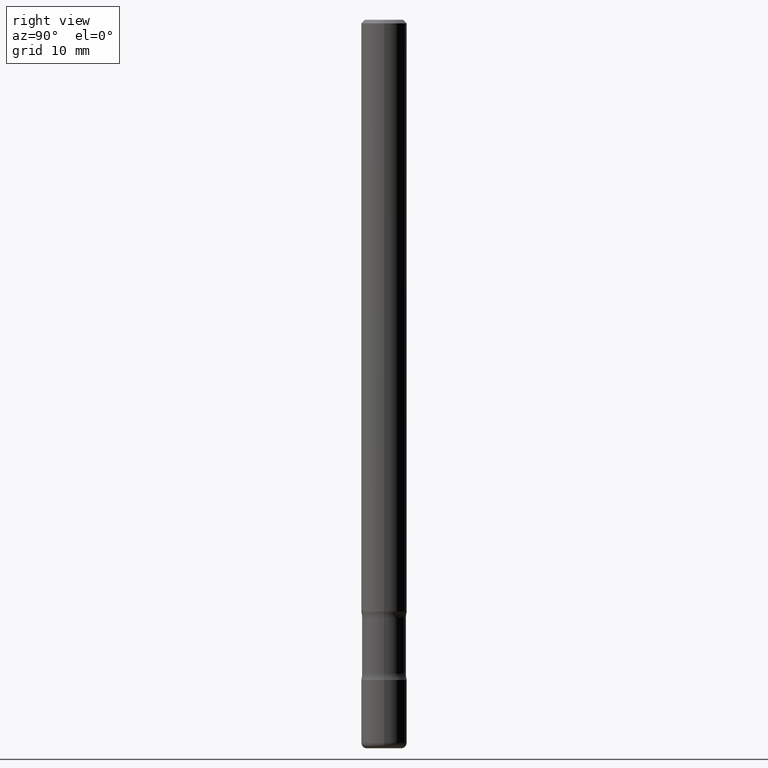
[diagram: clean part render]
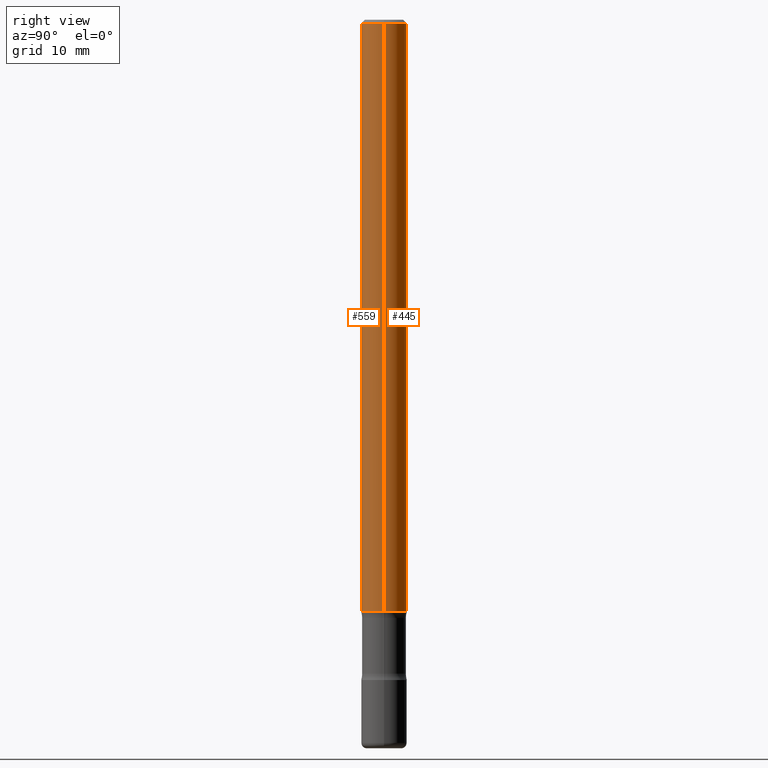
[diagram: same view with one multi-face feature highlighted, each face labeled with its STEP entity id]
A machine part, right view. The highlighted faces form ONE feature: a constant-radius fillet chain: 2 tangent blend faces with common blend radius 3.175 mm. The faces share edges in the B-rep.
Their STEP definitions:
[1] entity #559 (Cylinder):
#35 = ORIENTED_EDGE ( 'NONE', *, *, #324, .F. ) ;
#38 = DIRECTION ( 'NONE',  ( -2.445468806185136877E-29, 3.491481338843145188E-15, 1.000000000000000000 ) ) ;
#48 = CARTESIAN_POINT ( 'NONE',  ( -0.1249999999999998335, 8.881784197001240490E-16, -6.148668862818623819E-30 ) ) ;
#90 = EDGE_CURVE ( 'NONE', #190, #730, #798, .T. ) ;
#107 = DIRECTION ( 'NONE',  ( -2.445468806185136597E-29, 3.491481338843145583E-15, 1.000000000000000000 ) ) ;
#126 = DIRECTION ( 'NONE',  ( -2.445468806185136877E-29, 3.491481338843145188E-15, 1.000000000000000000 ) ) ;
#180 = EDGE_LOOP ( 'NONE', ( #35, #507, #383, #611 ) ) ;
#190 = VERTEX_POINT ( 'NONE', #298 ) ;
#213 = EDGE_CURVE ( 'NONE', #724, #730, #560, .T. ) ;
#216 = AXIS2_PLACEMENT_3D ( 'NONE', #420, #802, #488 ) ;
#235 = LINE ( 'NONE', #48, #570 ) ;
#236 = CYLINDRICAL_SURFACE ( 'NONE', #216, 0.1249999999999998335 ) ;
#247 = AXIS2_PLACEMENT_3D ( 'NONE', #740, #107, #296 ) ;
#290 = FACE_OUTER_BOUND ( 'NONE', #180, .T. ) ;
#296 = DIRECTION ( 'NONE',  ( 1.000000000000000000, -6.982962677686262766E-15, 0.000000000000000000 ) ) ;
#298 = CARTESIAN_POINT ( 'NONE',  ( -0.1249999999999996808, 8.030407079339180685E-16, -0.02000000000000002470 ) ) ;
#314 = CARTESIAN_POINT ( 'NONE',  ( 4.890937612370279289E-31, -6.982962677686299005E-17, -0.02000000000000002470 ) ) ;
#316 = EDGE_CURVE ( 'NONE', #649, #724, #708, .T. ) ;
#324 = EDGE_CURVE ( 'NONE', #649, #190, #235, .T. ) ;
#383 = ORIENTED_EDGE ( 'NONE', *, *, #213, .T. ) ;
#420 = CARTESIAN_POINT ( 'NONE',  ( 0.000000000000000000, 0.000000000000000000, 0.000000000000000000 ) ) ;
#460 = CARTESIAN_POINT ( 'NONE',  ( 0.1249999999999996808, -9.273918764983021797E-16, -0.02000000000000002470 ) ) ;
#488 = DIRECTION ( 'NONE',  ( 1.000000000000000000, -6.982962677686266711E-15, 4.876176775795935793E-29 ) ) ;
#507 = ORIENTED_EDGE ( 'NONE', *, *, #316, .T. ) ;
#529 = AXIS2_PLACEMENT_3D ( 'NONE', #314, #565, #685 ) ;
#559 = ADVANCED_FACE ( 'NONE', ( #290 ), #236, .T. ) ;
#560 = LINE ( 'NONE', #681, #582 ) ;
#565 = DIRECTION ( 'NONE',  ( -2.445468806185136597E-29, 3.491481338843145583E-15, 1.000000000000000000 ) ) ;
#570 = VECTOR ( 'NONE', #38, 39.37007874015748143 ) ;
#582 = VECTOR ( 'NONE', #126, 39.37007874015748143 ) ;
#611 = ORIENTED_EDGE ( 'NONE', *, *, #90, .F. ) ;
#649 = VERTEX_POINT ( 'NONE', #744 ) ;
#681 = CARTESIAN_POINT ( 'NONE',  ( 0.1249999999999998335, -8.728703347107821555E-16, 6.095220969744911333E-30 ) ) ;
#685 = DIRECTION ( 'NONE',  ( 1.000000000000000000, -6.982962677686266711E-15, 0.000000000000000000 ) ) ;
#702 = CARTESIAN_POINT ( 'NONE',  ( 0.1250000000000000000, -1.222018468595100619E-14, -3.250000000000000000 ) ) ;
#708 = CIRCLE ( 'NONE', #247, 0.1250000000000000000 ) ;
#724 = VERTEX_POINT ( 'NONE', #702 ) ;
#730 = VERTEX_POINT ( 'NONE', #460 ) ;
#740 = CARTESIAN_POINT ( 'NONE',  ( 7.947773620101693940E-29, -1.134731435124022443E-14, -3.250000000000000000 ) ) ;
#744 = CARTESIAN_POINT ( 'NONE',  ( -0.1250000000000000000, -4.820393569308410741E-15, -3.250000000000000000 ) ) ;
#798 = CIRCLE ( 'NONE', #529, 0.1249999999999996808 ) ;
#802 = DIRECTION ( 'NONE',  ( -2.445468806185136597E-29, 3.491481338843145583E-15, 1.000000000000000000 ) ) ;
[2] entity #445 (Cylinder):
#38 = DIRECTION ( 'NONE',  ( -2.445468806185136877E-29, 3.491481338843145188E-15, 1.000000000000000000 ) ) ;
#48 = CARTESIAN_POINT ( 'NONE',  ( -0.1249999999999998335, 8.881784197001240490E-16, -6.148668862818623819E-30 ) ) ;
#50 = DIRECTION ( 'NONE',  ( -2.445468806185136597E-29, 3.491481338843145583E-15, 1.000000000000000000 ) ) ;
#62 = CARTESIAN_POINT ( 'NONE',  ( 0.000000000000000000, 0.000000000000000000, 0.000000000000000000 ) ) ;
#71 = CYLINDRICAL_SURFACE ( 'NONE', #164, 0.1249999999999998335 ) ;
#126 = DIRECTION ( 'NONE',  ( -2.445468806185136877E-29, 3.491481338843145188E-15, 1.000000000000000000 ) ) ;
#129 = CARTESIAN_POINT ( 'NONE',  ( 7.947773620101693940E-29, -1.134731435124022443E-14, -3.250000000000000000 ) ) ;
#130 = EDGE_CURVE ( 'NONE', #724, #649, #198, .T. ) ;
#134 = ORIENTED_EDGE ( 'NONE', *, *, #213, .F. ) ;
#164 = AXIS2_PLACEMENT_3D ( 'NONE', #62, #688, #442 ) ;
#190 = VERTEX_POINT ( 'NONE', #298 ) ;
#198 = CIRCLE ( 'NONE', #231, 0.1250000000000000000 ) ;
#213 = EDGE_CURVE ( 'NONE', #724, #730, #560, .T. ) ;
#231 = AXIS2_PLACEMENT_3D ( 'NONE', #129, #50, #512 ) ;
#235 = LINE ( 'NONE', #48, #570 ) ;
#250 = EDGE_CURVE ( 'NONE', #730, #190, #782, .T. ) ;
#251 = EDGE_LOOP ( 'NONE', ( #449, #745, #738, #134 ) ) ;
#298 = CARTESIAN_POINT ( 'NONE',  ( -0.1249999999999996808, 8.030407079339180685E-16, -0.02000000000000002470 ) ) ;
#324 = EDGE_CURVE ( 'NONE', #649, #190, #235, .T. ) ;
#331 = DIRECTION ( 'NONE',  ( 1.000000000000000000, -6.982962677686266711E-15, 0.000000000000000000 ) ) ;
#360 = AXIS2_PLACEMENT_3D ( 'NONE', #382, #691, #331 ) ;
#382 = CARTESIAN_POINT ( 'NONE',  ( 4.890937612370279289E-31, -6.982962677686299005E-17, -0.02000000000000002470 ) ) ;
#442 = DIRECTION ( 'NONE',  ( 1.000000000000000000, -6.982962677686266711E-15, 4.876176775795935793E-29 ) ) ;
#445 = ADVANCED_FACE ( 'NONE', ( #761 ), #71, .T. ) ;
#449 = ORIENTED_EDGE ( 'NONE', *, *, #130, .T. ) ;
#460 = CARTESIAN_POINT ( 'NONE',  ( 0.1249999999999996808, -9.273918764983021797E-16, -0.02000000000000002470 ) ) ;
#512 = DIRECTION ( 'NONE',  ( 1.000000000000000000, -6.982962677686262766E-15, 0.000000000000000000 ) ) ;
#560 = LINE ( 'NONE', #681, #582 ) ;
#570 = VECTOR ( 'NONE', #38, 39.37007874015748143 ) ;
#582 = VECTOR ( 'NONE', #126, 39.37007874015748143 ) ;
#649 = VERTEX_POINT ( 'NONE', #744 ) ;
#681 = CARTESIAN_POINT ( 'NONE',  ( 0.1249999999999998335, -8.728703347107821555E-16, 6.095220969744911333E-30 ) ) ;
#688 = DIRECTION ( 'NONE',  ( -2.445468806185136597E-29, 3.491481338843145583E-15, 1.000000000000000000 ) ) ;
#691 = DIRECTION ( 'NONE',  ( -2.445468806185136597E-29, 3.491481338843145583E-15, 1.000000000000000000 ) ) ;
#702 = CARTESIAN_POINT ( 'NONE',  ( 0.1250000000000000000, -1.222018468595100619E-14, -3.250000000000000000 ) ) ;
#724 = VERTEX_POINT ( 'NONE', #702 ) ;
#730 = VERTEX_POINT ( 'NONE', #460 ) ;
#738 = ORIENTED_EDGE ( 'NONE', *, *, #250, .F. ) ;
#744 = CARTESIAN_POINT ( 'NONE',  ( -0.1250000000000000000, -4.820393569308410741E-15, -3.250000000000000000 ) ) ;
#745 = ORIENTED_EDGE ( 'NONE', *, *, #324, .T. ) ;
#761 = FACE_OUTER_BOUND ( 'NONE', #251, .T. ) ;
#782 = CIRCLE ( 'NONE', #360, 0.1249999999999996808 ) ;